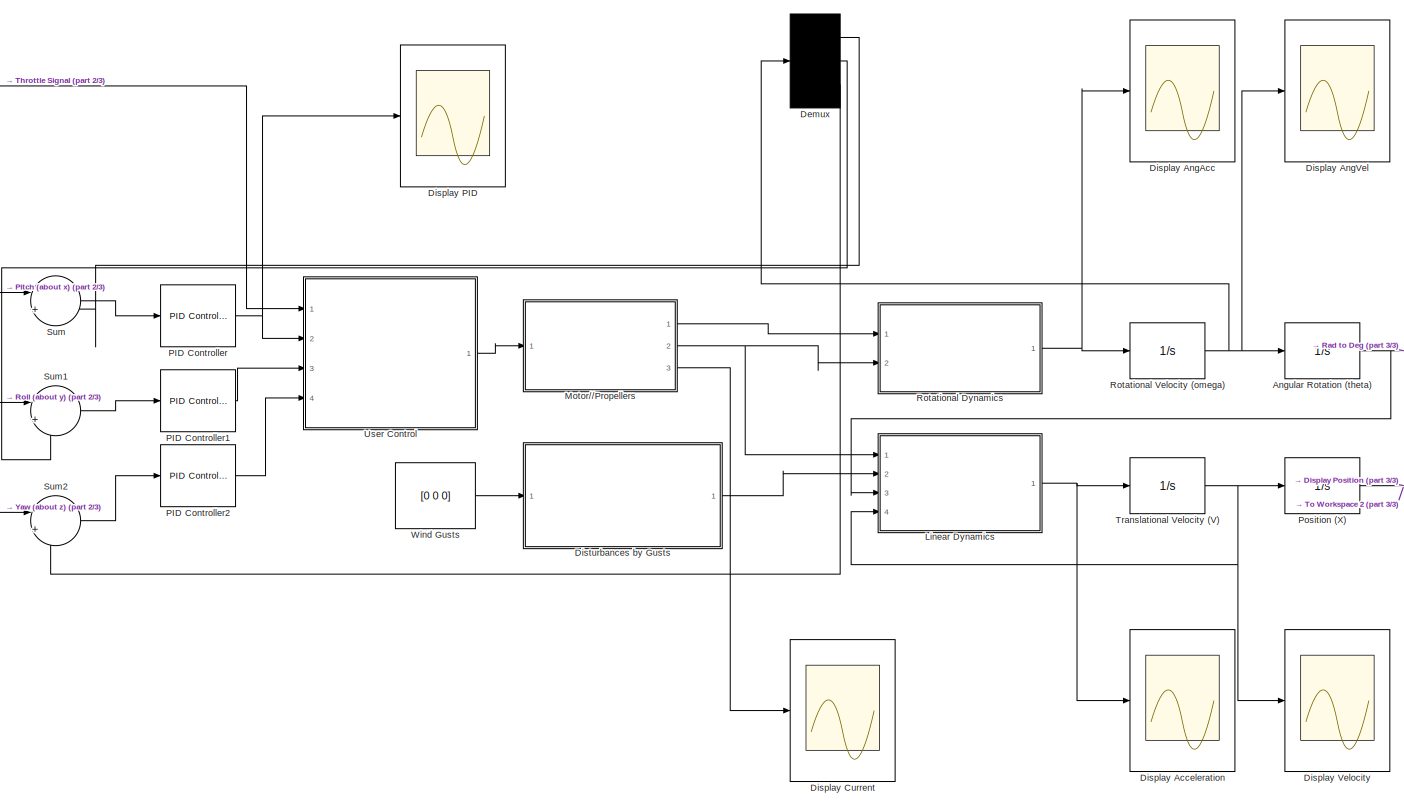
[diagram: root canvas - part 1/3, center side, full height]
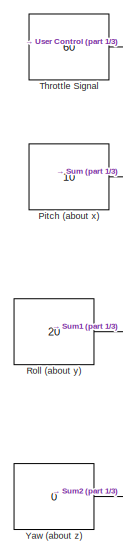
[diagram: root canvas - part 2/3, top left region]
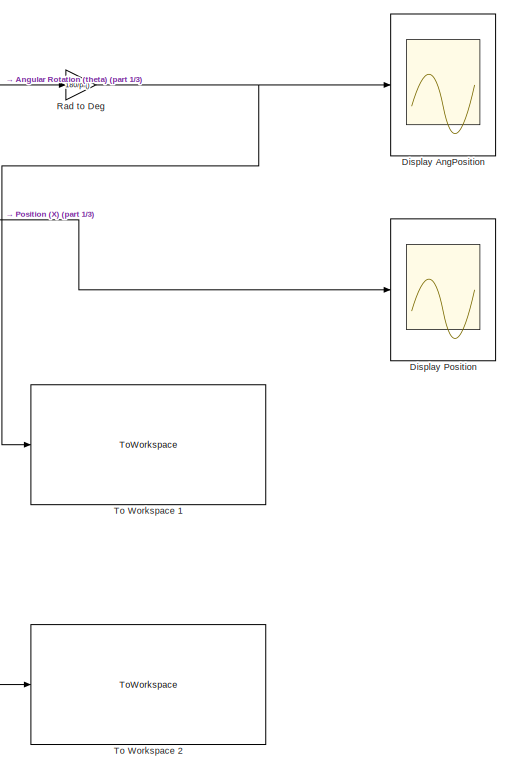
[diagram: root canvas - part 3/3, middle right region]
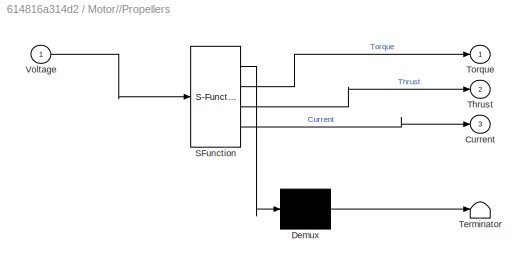
MODEL slx_614816a314d2
KIND model
CONFIG AbsTol = auto
CONFIG EnableMultiTasking = off
CONFIG FixedStep = auto
CONFIG MaxStep = auto
CONFIG MinStep = auto
CONFIG RelTol = 1e-3
CONFIG SampleTimeConstraint = Unconstrained
CONFIG SolverName = VariableStepAuto
CONFIG StartTime = 0.0
CONFIG StopTime = 100
BLOCK [Integrator] Angular Rotation (theta)
  Ports = [1, 1]
BLOCK [Demux] Demux
  Outputs = 3
  Ports = [1, 3]
BLOCK [Scope] Display Acceleration
  Floating = off
  NumInputPorts = 1
  Ports = [1]
  ScopeSpecificationString = Simulink.scopes.TimeScopeBlockCfg('CurrentConfiguration', extmgr.ConfigurationSet(extmgr.Configuration('Core','General UI',true),extmgr.Configuration('Core','Source UI',true),extmgr.Configuration('Sources','WiredSimulink',true,'DataLoggingVariableName','ScopeData1'),extmgr.Configuration('Visuals','Time Domain',true,'SerializedDisplays',{struct('MinYLimReal','-23.59358','MaxYLimReal','20.96718','YL...<+1422ch>
BLOCK [Scope] Display AngAcc
  Floating = off
  NumInputPorts = 1
  Ports = [1]
  ScopeSpecificationString = Simulink.scopes.TimeScopeBlockCfg('CurrentConfiguration', extmgr.ConfigurationSet(extmgr.Configuration('Core','General UI',true),extmgr.Configuration('Core','Source UI',true),extmgr.Configuration('Sources','WiredSimulink',true,'DataLoggingVariableName','ScopeData3'),extmgr.Configuration('Visuals','Time Domain',true,'SerializedDisplays',{struct('MinYLimReal','-11.43971','MaxYLimReal','100.19493','Y...<+1504ch>
BLOCK [Scope] Display AngPosition
  Floating = off
  NumInputPorts = 1
  Ports = [1]
  ScopeSpecificationString = Simulink.scopes.TimeScopeBlockCfg('CurrentConfiguration', extmgr.ConfigurationSet(extmgr.Configuration('Core','General UI',true),extmgr.Configuration('Core','Source UI',true),extmgr.Configuration('Sources','WiredSimulink',true,'DataLoggingVariableName','ScopeData4'),extmgr.Configuration('Visuals','Time Domain',true,'SerializedDisplays',{struct('MinYLimReal','-14375.79674','MaxYLimReal','129319.411...<+1501ch>
BLOCK [Scope] Display AngVel
  Floating = off
  NumInputPorts = 1
  Ports = [1]
  ScopeSpecificationString = Simulink.scopes.TimeScopeBlockCfg('CurrentConfiguration', extmgr.ConfigurationSet(extmgr.Configuration('Core','General UI',true),extmgr.Configuration('Core','Source UI',true),extmgr.Configuration('Sources','WiredSimulink',true,'DataLoggingVariableName','ScopeData2'),extmgr.Configuration('Visuals','Time Domain',true,'SerializedDisplays',{struct('MinYLimReal','-2.75075','MaxYLimReal','22.60402','YLa...<+1522ch>
BLOCK [Scope] Display Current
  Floating = off
  NumInputPorts = 1
  Ports = [1]
  ScopeSpecificationString = Simulink.scopes.TimeScopeBlockCfg('CurrentConfiguration', extmgr.ConfigurationSet(extmgr.Configuration('Core','General UI',true),extmgr.Configuration('Core','Source UI',true),extmgr.Configuration('Sources','WiredSimulink',true,'DataLoggingVariableName','ScopeData5'),extmgr.Configuration('Visuals','Time Domain',true,'SerializedDisplays',{struct('MinYLimReal','56.31711','MaxYLimReal','93.54895','YLa...<+1482ch>
BLOCK [Scope] Display PID
  Floating = off
  NumInputPorts = 1
  Ports = [1]
  ScopeSpecificationString = Simulink.scopes.TimeScopeBlockCfg('CurrentConfiguration', extmgr.ConfigurationSet(extmgr.Configuration('Core','General UI',true),extmgr.Configuration('Core','Source UI',true),extmgr.Configuration('Sources','WiredSimulink',true,'DataLoggingVariableName','ScopeData2'),extmgr.Configuration('Visuals','Time Domain',true,'SerializedDisplays',{struct('MinYLimReal','55.45739','MaxYLimReal','55.53552','YLa...<+1482ch>
BLOCK [Scope] Display Position
  Floating = off
  NumInputPorts = 1
  Ports = [1]
  ScopeSpecificationString = Simulink.scopes.TimeScopeBlockCfg('CurrentConfiguration', extmgr.ConfigurationSet(extmgr.Configuration('Core','General UI',true),extmgr.Configuration('Core','Source UI',true),extmgr.Configuration('Sources','WiredSimulink',true,'DataLoggingVariableName','ScopeData6'),extmgr.Configuration('Visuals','Time Domain',true,'SerializedDisplays',{struct('MinYLimReal','-1695.91241','MaxYLimReal','213.27632',...<+1493ch>
BLOCK [Scope] Display Velocity
  Floating = off
  NumInputPorts = 1
  Ports = [1]
  ScopeSpecificationString = Simulink.scopes.TimeScopeBlockCfg('CurrentConfiguration', extmgr.ConfigurationSet(extmgr.Configuration('Core','General UI',true),extmgr.Configuration('Core','Source UI',true),extmgr.Configuration('Sources','WiredSimulink',true),extmgr.Configuration('Visuals','Time Domain',true,'SerializedDisplays',{struct('MinYLimReal','-27.72591','MaxYLimReal','30.71917','YLabelReal','','MinYLimMag','0.00000','Ma...<+1511ch>
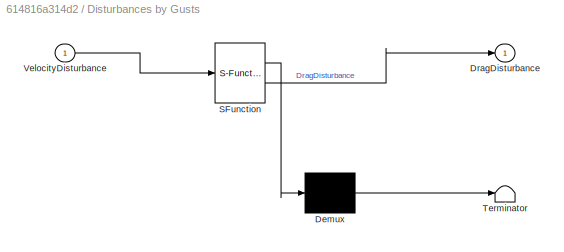
BLOCK [SubSystem] Disturbances by Gusts
  ErrorFcn = Stateflow.Translate.translate
  PermitHierarchicalResolution = ExplicitOnly
  Ports = [1, 1]
  RequestExecContextInheritance = off
  SFBlockType = MATLAB Function
  TreatAsAtomicUnit = on
BLOCK [Demux] Disturbances by Gusts/ Demux 
  Outputs = 1
  Ports = [1, 1]
BLOCK [S-Function] Disturbances by Gusts/ SFunction 
  EnableBusSupport = on
  FunctionName = sf_sfun
  PortCounts = [1 2]
  Ports = [1, 2]
  SFcnIsStateOwnerBlock = off
  SFunctionDeploymentMode = off
  Tag = Stateflow S-Function 4
BLOCK [Terminator] Disturbances by Gusts/ Terminator 
BLOCK [Outport] Disturbances by Gusts/DragDisturbance
BLOCK [Inport] Disturbances by Gusts/VelocityDisturbance
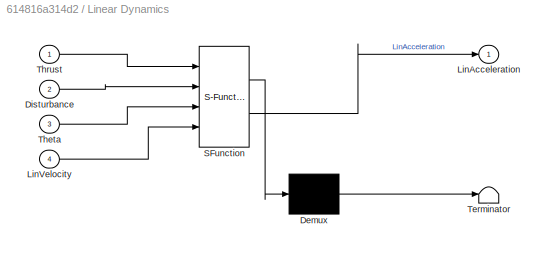
BLOCK [SubSystem] Linear Dynamics
  ErrorFcn = Stateflow.Translate.translate
  PermitHierarchicalResolution = ExplicitOnly
  Ports = [4, 1]
  RequestExecContextInheritance = off
  SFBlockType = MATLAB Function
  TreatAsAtomicUnit = on
BLOCK [Demux] Linear Dynamics/ Demux 
  Outputs = 1
  Ports = [1, 1]
BLOCK [S-Function] Linear Dynamics/ SFunction 
  EnableBusSupport = on
  FunctionName = sf_sfun
  PortCounts = [4 2]
  Ports = [4, 2]
  SFcnIsStateOwnerBlock = off
  SFunctionDeploymentMode = off
  Tag = Stateflow S-Function 3
BLOCK [Terminator] Linear Dynamics/ Terminator 
BLOCK [Inport] Linear Dynamics/Disturbance
  Port = 2
BLOCK [Outport] Linear Dynamics/LinAcceleration
BLOCK [Inport] Linear Dynamics/LinVelocity
  Port = 4
BLOCK [Inport] Linear Dynamics/Theta
  Port = 3
BLOCK [Inport] Linear Dynamics/Thrust
BLOCK [SubSystem] Motor////Propellers
  ErrorFcn = Stateflow.Translate.translate
  PermitHierarchicalResolution = ExplicitOnly
  Ports = [1, 3]
  RequestExecContextInheritance = off
  SFBlockType = MATLAB Function
  TreatAsAtomicUnit = on
BLOCK [Demux] Motor////Propellers/ Demux 
  Outputs = 1
  Ports = [1, 1]
BLOCK [S-Function] Motor////Propellers/ SFunction 
  EnableBusSupport = on
  FunctionName = sf_sfun
  PortCounts = [1 4]
  Ports = [1, 4]
  SFcnIsStateOwnerBlock = off
  SFunctionDeploymentMode = off
  Tag = Stateflow S-Function 2
BLOCK [Terminator] Motor////Propellers/ Terminator 
BLOCK [Outport] Motor////Propellers/Current
  Port = 3
BLOCK [Outport] Motor////Propellers/Thrust
  Port = 2
BLOCK [Outport] Motor////Propellers/Torque
BLOCK [Inport] Motor////Propellers/Voltage
BLOCK [Reference] PID Controller  REF=slpidlib/PID Controller
  Ports = [1, 1]
  SourceBlock = slpidlib/PID Controller
  SourceProductBaseCode = SL
  SourceType = PID 1dof
BLOCK [Reference] PID Controller1  REF=slpidlib/PID Controller
  Ports = [1, 1]
  SourceBlock = slpidlib/PID Controller
  SourceProductBaseCode = SL
  SourceType = PID 1dof
BLOCK [Reference] PID Controller2  REF=slpidlib/PID Controller
  Ports = [1, 1]
  SourceBlock = slpidlib/PID Controller
  SourceProductBaseCode = SL
  SourceType = PID 1dof
BLOCK [Constant] Pitch (about x)
  Value = 10
BLOCK [Integrator] Position (X)
  Ports = [1, 1]
BLOCK [Gain] Rad to Deg
  Gain = 180/pi()
BLOCK [Constant] Roll (about y)
  Value = 20
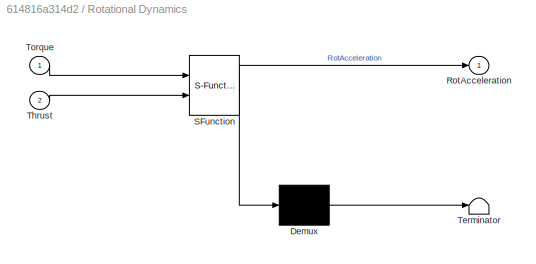
BLOCK [SubSystem] Rotational Dynamics
  ErrorFcn = Stateflow.Translate.translate
  PermitHierarchicalResolution = ExplicitOnly
  Ports = [2, 1]
  RequestExecContextInheritance = off
  SFBlockType = MATLAB Function
  TreatAsAtomicUnit = on
BLOCK [Demux] Rotational Dynamics/ Demux 
  Outputs = 1
  Ports = [1, 1]
BLOCK [S-Function] Rotational Dynamics/ SFunction 
  EnableBusSupport = on
  FunctionName = sf_sfun
  PortCounts = [2 2]
  Ports = [2, 2]
  SFcnIsStateOwnerBlock = off
  SFunctionDeploymentMode = off
  Tag = Stateflow S-Function 1
BLOCK [Terminator] Rotational Dynamics/ Terminator 
BLOCK [Outport] Rotational Dynamics/RotAcceleration
BLOCK [Inport] Rotational Dynamics/Thrust
  Port = 2
BLOCK [Inport] Rotational Dynamics/Torque
BLOCK [Integrator] Rotational Velocity (omega)
  Ports = [1, 1]
BLOCK [Sum] Sum
  Inputs = |+-
  Ports = [2, 1]
BLOCK [Sum] Sum1
  Inputs = |+-
  Ports = [2, 1]
BLOCK [Sum] Sum2
  Inputs = |+-
  Ports = [2, 1]
BLOCK [Constant] Throttle Signal
  Value = 60
BLOCK [ToWorkspace] To Workspace 1
  FixptAsFi = on
  MaxDataPoints = inf
  Ports = [1]
  SampleTime = 0.1
  Save2DSignal = 2-D array (concatenate along first dimension)
  VariableName = Theta
BLOCK [ToWorkspace] To Workspace 2
  FixptAsFi = on
  MaxDataPoints = inf
  Ports = [1]
  SampleTime = 0.1
  Save2DSignal = 2-D array (concatenate along first dimension)
  VariableName = Pos
BLOCK [Integrator] Translational Velocity (V)
  Ports = [1, 1]
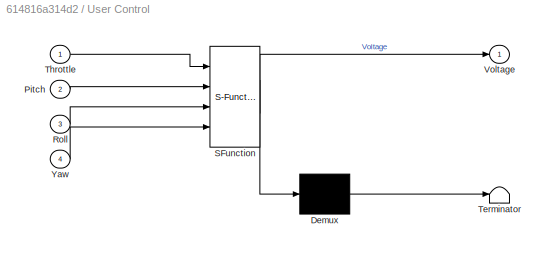
BLOCK [SubSystem] User Control
  ErrorFcn = Stateflow.Translate.translate
  PermitHierarchicalResolution = ExplicitOnly
  Ports = [4, 1]
  RequestExecContextInheritance = off
  SFBlockType = MATLAB Function
  TreatAsAtomicUnit = on
BLOCK [Demux] User Control/ Demux 
  Outputs = 1
  Ports = [1, 1]
BLOCK [S-Function] User Control/ SFunction 
  EnableBusSupport = on
  FunctionName = sf_sfun
  PortCounts = [4 2]
  Ports = [4, 2]
  SFcnIsStateOwnerBlock = off
  SFunctionDeploymentMode = off
  Tag = Stateflow S-Function 5
BLOCK [Terminator] User Control/ Terminator 
BLOCK [Inport] User Control/Pitch
  Port = 2
BLOCK [Inport] User Control/Roll
  Port = 3
BLOCK [Inport] User Control/Throttle
BLOCK [Outport] User Control/Voltage
BLOCK [Inport] User Control/Yaw
  Port = 4
BLOCK [Constant] Wind Gusts
  Value = [0 0 0]
BLOCK [Constant] Yaw (about z)
  Value = 0
NET Angular Rotation (theta):1 -> Linear Dynamics:3, Rad to Deg:1
LINE Demux:1 -> Sum:2
LINE Demux:2 -> Sum1:2
LINE Demux:3 -> Sum2:2
LINE Disturbances by Gusts:1 -> Linear Dynamics:2
NET Linear Dynamics:1 -> Display Acceleration:1, Translational Velocity (V):1
LINE Motor////Propellers:1 -> Rotational Dynamics:1
NET Motor////Propellers:2 -> Linear Dynamics:1, Rotational Dynamics:2
LINE Motor////Propellers:3 -> Display Current:1
LINE PID Controller1:1 -> User Control:3
LINE PID Controller2:1 -> User Control:4
NET PID Controller:1 -> Display PID:1, User Control:2
LINE Pitch (about x):1 -> Sum:1
NET Position (X):1 -> Display Position:1, To Workspace 2:1
NET Rad to Deg:1 -> Display AngPosition:1, To Workspace 1:1
LINE Roll (about y):1 -> Sum1:1
NET Rotational Dynamics:1 -> Display AngAcc:1, Rotational Velocity (omega):1
NET Rotational Velocity (omega):1 -> Angular Rotation (theta):1, Demux:1, Display AngVel:1
LINE Sum1:1 -> PID Controller1:1
LINE Sum2:1 -> PID Controller2:1
LINE Sum:1 -> PID Controller:1
LINE Throttle Signal:1 -> User Control:1
NET Translational Velocity (V):1 -> Display Velocity:1, Linear Dynamics:4, Position (X):1
LINE User Control:1 -> Motor////Propellers:1
LINE Wind Gusts:1 -> Disturbances by Gusts:1
LINE Yaw (about z):1 -> Sum2:1
note: NET lines group one-source signal fan-out (src -> all destinations, sorted); 1:1 wires keep LINE
CHART Rotational Dynamics states=1 transitions=1
  STATE_LABEL 'eML_blk_kernel()'
  STATE_LABEL 'SCRIPT:\nfunction RotAcceleration = fcn(Torque, Thrust)\nMoment = [0 0 0]; \nRotAcceleration = [0 0 0]; \nMomInertia = [0.003 0.003 0.007];\n\n% Calculate sums of Moments\nMoment(1) = (Thrust(3)+Thrust(4))*0.237/2-(Thrust(1)+Thrust(2))*0.237/2; % Roll\nMoment(2) = (Thrust(3)+Thrust(2))*0.237/2-(Thrust(1)+Thrust(4))*0.237/2; % Pitch\nMoment(3) = Torque(4)-Torque(1)+Torque(2)-Torque(3); % Yaw\n\n% Calculate Ro...<+93ch>'
CHART Motor////Propellers states=1 transitions=1
  STATE_LABEL 'eML_blk_kernel()'
  STATE_LABEL 'SCRIPT:\nfunction [Torque, Thrust, Current] = fcn(Voltage)\nRPM = [0 0 0 0];\nTorque = [0 0 0 0];\nCurrent = [0 0 0 0];\nThrust = [0 0 0 0];\n\n% Calculate values for all 4 propellers with respect to Voltage input\nfor i = 1:4\n    RPM(i) = -2.6931*Voltage(i)^3 + 1400*Voltage(i);\n    Ct = 2*10^-15*RPM(i)^3 - 4*10^-11*RPM(i)^2 + 3*10^-7*RPM(i) + 0.1013;\n    Thrust(i) = Ct*1.225*(RPM(i)/60)^2 * (0.2^4);\n    ...<+104ch>'
CHART Linear Dynamics states=1 transitions=1
  STATE_LABEL 'eML_blk_kernel()'
  STATE_LABEL 'SCRIPT:\nfunction LinAcceleration = fcn(Thrust, Disturbance, Theta, LinVelocity)\nm = 0.743; % kg\ng = 9.81; % m/s^2\nA = [0.0197 0.0197 0.0512]; % m^2\nrho = 1.225; % kg*m^-3\nCd = 1; % drag coefficient\n\nLinAcceleration = [0 0 0];\nForce = [0 0 0];\nFprop = [0 0 0];\n\n% Force from propellors in 3 dimensions\nFprop(1) = sin(Theta(2))*cos(Theta(1))*(Thrust(1)+Thrust(2)+Thrust(3)+Thrust(4));\nFprop(2) = sin(Th...<+1321ch>'
CHART Disturbances by Gusts states=1 transitions=1
  STATE_LABEL 'eML_blk_kernel()'
  STATE_LABEL 'SCRIPT:\nfunction DragDisturbance = fcn(VelocityDisturbance)\nA = [0.0197 0.0197 (0.0197*2*1.33)];\nDragDisturbance = [0 0 0];\nrho = 1.225;\nCd = 1;\n\n% Goal is to counter velocity of disturbance\nfor i = 1:3\n    % if disturbance goes against drone\n    if VelocityDisturbance(i) < 0\n        DragDisturbance(i) = 0.5*rho*VelocityDisturbance(i)^2*A(i)*Cd;\n    %if disturbance is from back of drone\n    else\n ...<+84ch>'
CHART User Control states=1 transitions=1
  STATE_LABEL 'eML_blk_kernel()'
  STATE_LABEL 'SCRIPT:\nfunction Voltage = fcn(Throttle, Pitch, Roll, Yaw)\nCorrect = 0;\n% function fits input into our throttle system\n% drone throttle system: 10 - 100%, where 10 is 0% for us\n% divide by 2 since we have two motors\nif (Pitch/2+Roll/2+Yaw/2)>(100-Throttle) \n    Correct = ((Pitch/2+Roll/2+Yaw/2)-(100-Throttle));\nend\nif (Pitch/2+Roll/2+Yaw/2)>(Throttle)\n    if Correct<((Pitch/2+Roll/2+Yaw/2)-(Thrott...<+501ch>'
CHART  states=0 transitions=0
CHART  states=0 transitions=0
CHART  states=0 transitions=0
CHART  states=0 transitions=0
CHART  states=0 transitions=0
